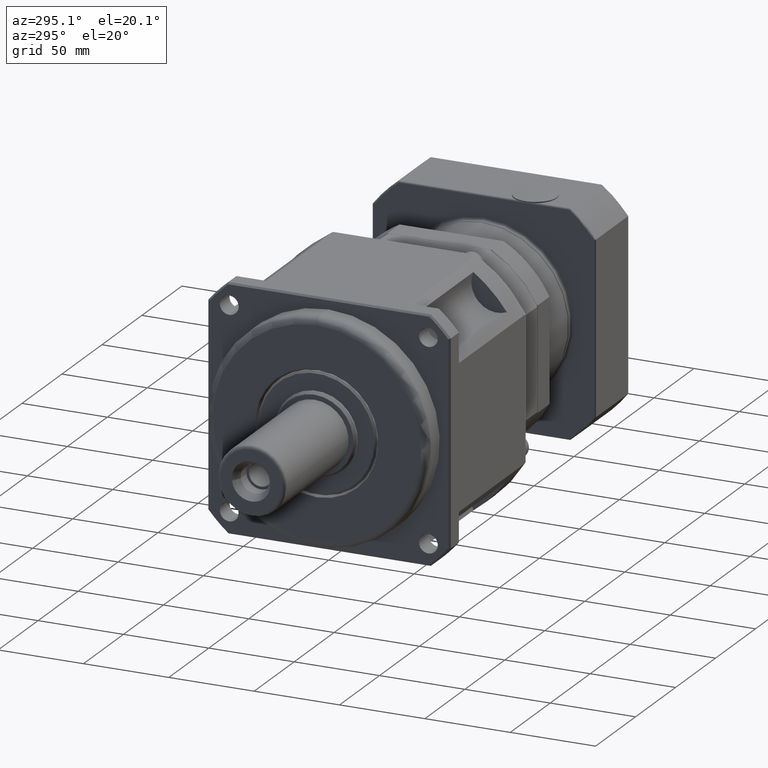
[diagram: clean part render]
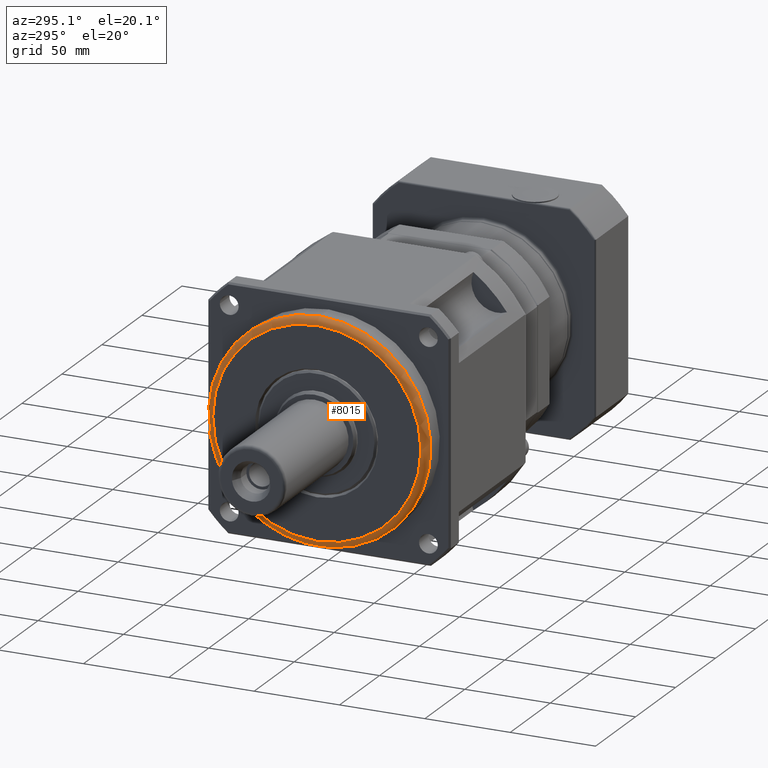
[diagram: same view with one face highlighted and labeled with its STEP entity id]
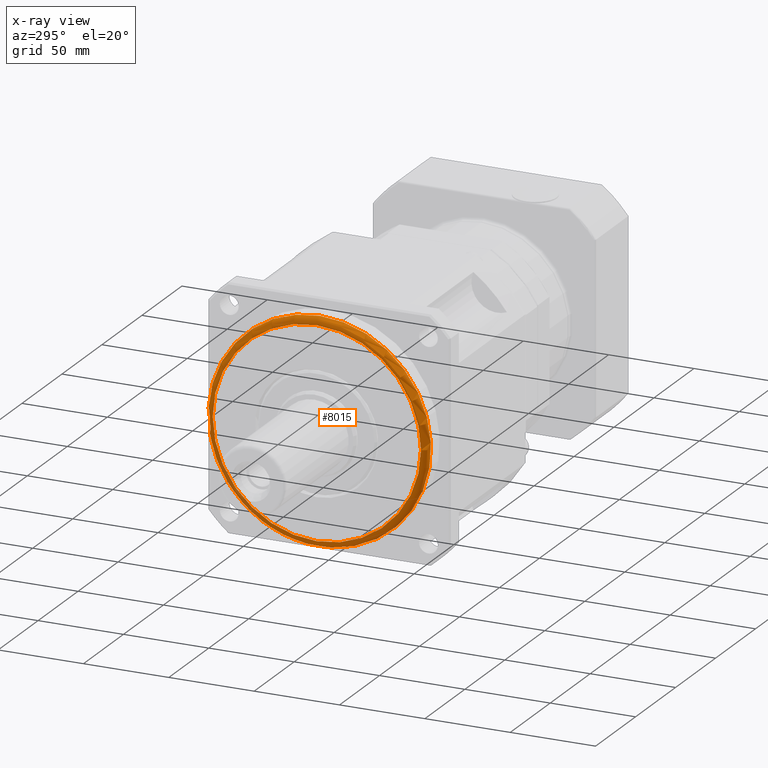
[diagram: x-ray of the same camera — body ghosted, the highlighted face saturated]
A machine part, auxiliary view. The second image highlights one B-rep face of the part: STEP entity #8015.
The next image is the same camera in x-ray: the body ghosted, the highlighted face saturated — about 5% of this face is hidden behind the body in this view.
In plain terms, the highlighted toroidal blend (fillet) surface has major radius 61 mm and minor (blend) radius 4 mm.
Its self-contained STEP definition (entity closure, byte-faithful):
#1189=TOROIDAL_SURFACE('',#8791,61.,4.);
#1612=FACE_BOUND('',#2722,.T.);
#2018=FACE_OUTER_BOUND('',#2721,.T.);
#2721=EDGE_LOOP('',(#6230));
#2722=EDGE_LOOP('',(#6231));
#3275=CIRCLE('',#8790,61.);
#3276=CIRCLE('',#8792,65.);
#3848=VERTEX_POINT('',#13853);
#3849=VERTEX_POINT('',#13856);
#4717=EDGE_CURVE('',#3848,#3848,#3275,.T.);
#4718=EDGE_CURVE('',#3849,#3849,#3276,.T.);
#6230=ORIENTED_EDGE('',*,*,#4718,.T.);
#6231=ORIENTED_EDGE('',*,*,#4717,.T.);
#8015=ADVANCED_FACE('',(#2018,#1612),#1189,.T.);
#8790=AXIS2_PLACEMENT_3D('',#13854,#10377,#10378);
#8791=AXIS2_PLACEMENT_3D('',#13855,#10379,#10380);
#8792=AXIS2_PLACEMENT_3D('',#13857,#10381,#10382);
#10377=DIRECTION('center_axis',(1.,-9.99200722162628E-16,-9.84803175675623E-16));
#10378=DIRECTION('ref_axis',(-9.84803175675621E-16,1.5681900222825E-15,
-1.));
#10379=DIRECTION('center_axis',(-1.,9.99200722162628E-16,9.84803175675623E-16));
#10380=DIRECTION('ref_axis',(8.74514136320123E-16,-1.31177120448019E-15,
1.));
#10381=DIRECTION('center_axis',(-1.,9.99200722162628E-16,9.84803175675623E-16));
#10382=DIRECTION('ref_axis',(-9.84803175675621E-16,1.5681900222825E-15,
-1.));
#13853=CARTESIAN_POINT('',(-265.559385272836,-150.310004596179,-16.0025259929322));
#13854=CARTESIAN_POINT('Origin',(-265.559385272836,-150.310004596179,-77.0025259929322));
#13855=CARTESIAN_POINT('Origin',(-261.559385272836,-150.310004596179,-77.0025259929322));
#13856=CARTESIAN_POINT('',(-261.559385272836,-150.310004596179,-12.0025259929322));
#13857=CARTESIAN_POINT('Origin',(-261.559385272836,-150.310004596179,-77.0025259929322));